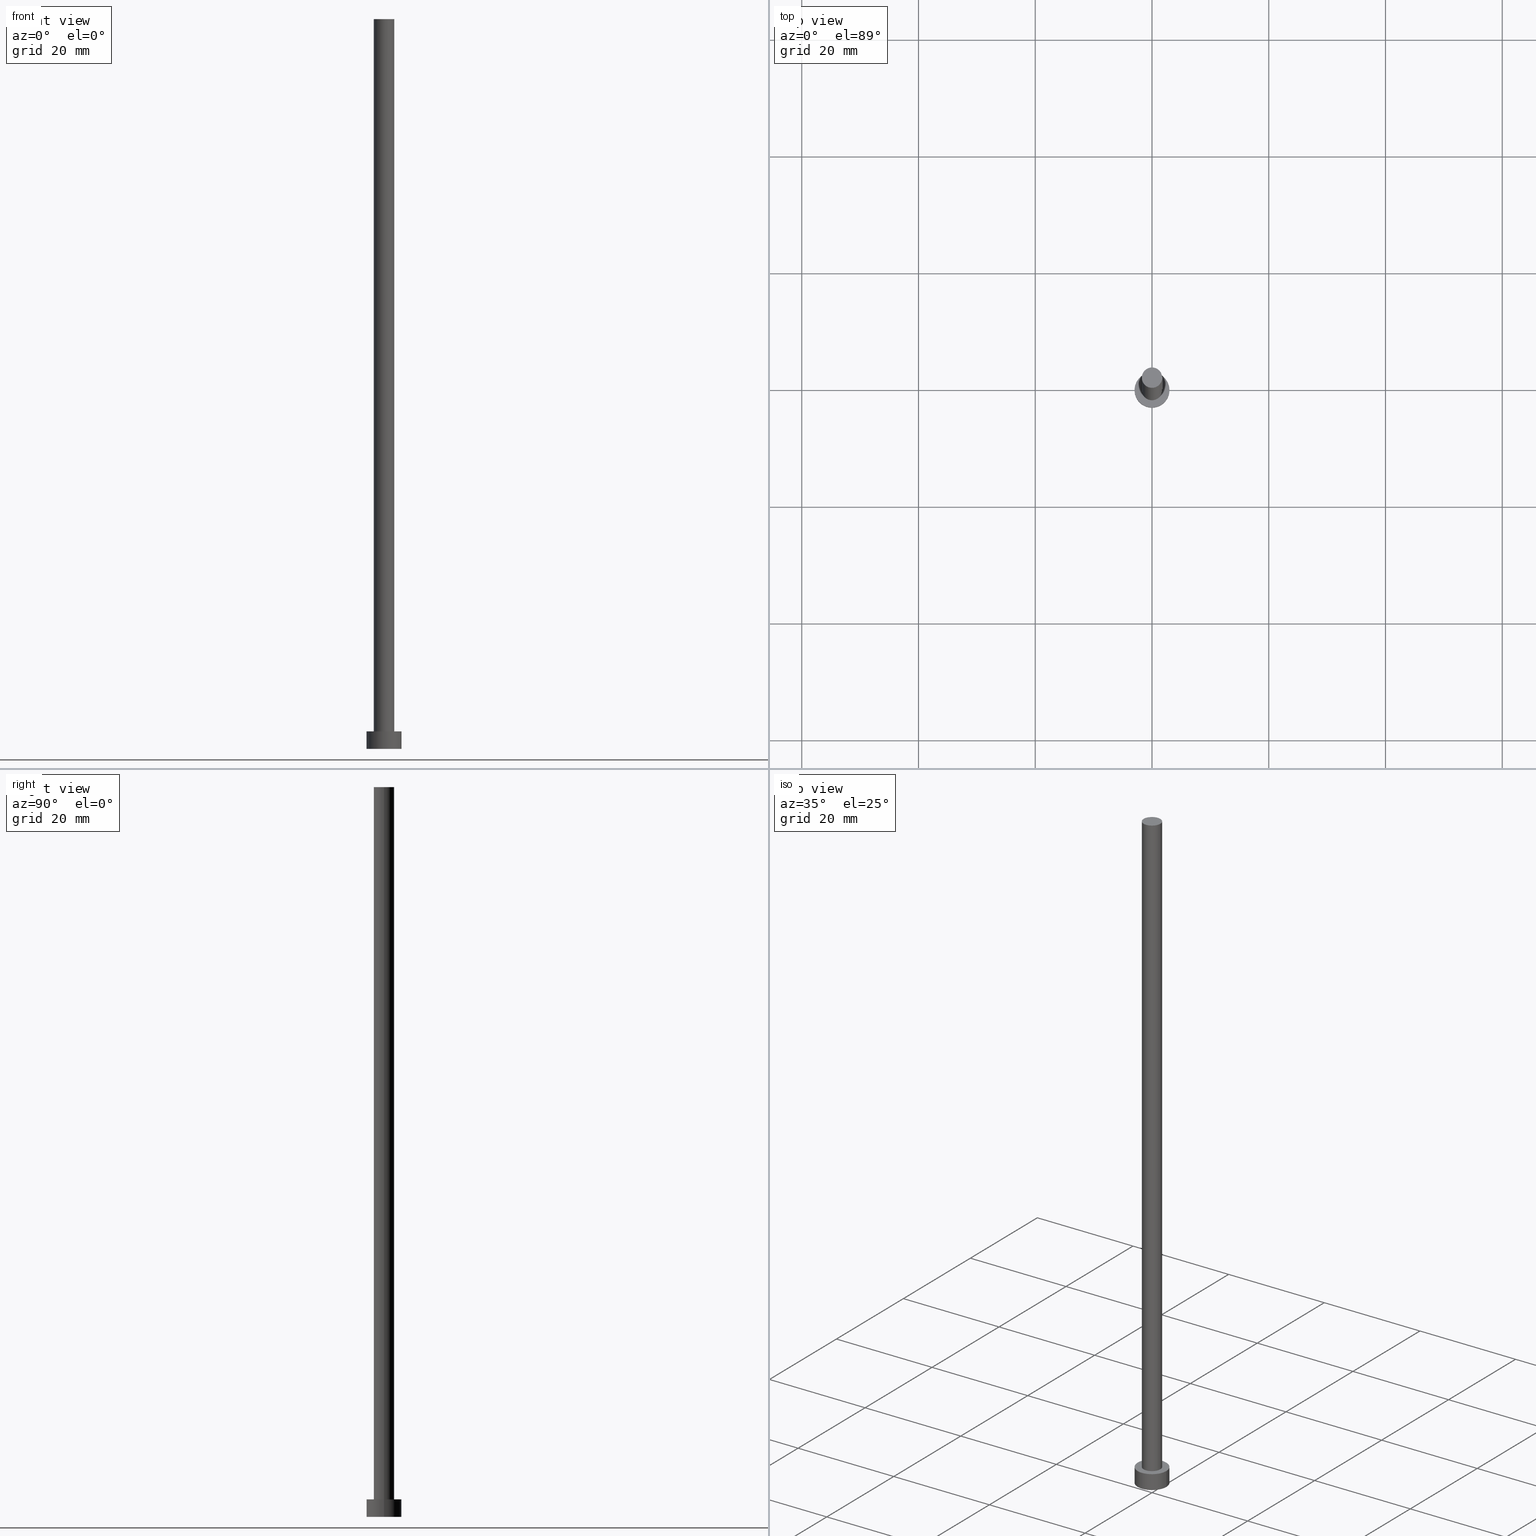
[diagram: canonical four-view strip — front | top / right | iso, engineering-drawing reading convention]
A machine part, canonical four-view strip (front | top / right | iso — engineering-drawing reading convention). The complete STEP part file that produces these views, byte-faithful:
ISO-10303-21;
HEADER;
FILE_DESCRIPTION (( 'STEP AP203' ),
    '1' );
FILE_NAME ('0328.STEP',
    '2023-02-13T16:51:21',
    ( '' ),
    ( '' ),
    'SwSTEP 2.0',
    'SolidWorks 2019',
    '' );
FILE_SCHEMA (( 'CONFIG_CONTROL_DESIGN' ));
ENDSEC;

DATA;
#1 = DIRECTION ( 'NONE',  ( 0.000000000000000000, 0.000000000000000000, 1.000000000000000000 ) ) ;
#2 = DIRECTION ( 'NONE',  ( -0.000000000000000000, -0.000000000000000000, -1.000000000000000000 ) ) ;
#3 = APPROVAL_ROLE ( '' ) ;
#4 = PERSON_AND_ORGANIZATION ( #148, #226 ) ;
#5 = CC_DESIGN_PERSON_AND_ORGANIZATION_ASSIGNMENT ( #4, #172, ( #72 ) ) ;
#6 = CARTESIAN_POINT ( 'NONE',  ( -1.750000000000000000, 0.000000000000000000, 125.0000000000000000 ) ) ;
#7 = DATE_AND_TIME ( #94, #151 ) ;
#8 = ORIENTED_EDGE ( 'NONE', *, *, #98, .T. ) ;
#9 = APPROVAL_PERSON_ORGANIZATION ( #122, #249, #3 ) ;
#10 = PERSON_AND_ORGANIZATION ( #148, #226 ) ;
#11 = PERSON_AND_ORGANIZATION ( #148, #226 ) ;
#12 = SECURITY_CLASSIFICATION ( '', '', #33 ) ;
#13 = APPROVAL_ROLE ( '' ) ;
#14 = EDGE_CURVE ( 'NONE', #155, #70, #77, .T. ) ;
#15 = ORIENTED_EDGE ( 'NONE', *, *, #20, .T. ) ;
#16 = DIRECTION ( 'NONE',  ( 0.000000000000000000, 0.000000000000000000, 1.000000000000000000 ) ) ;
#17 = FACE_OUTER_BOUND ( 'NONE', #138, .T. ) ;
#18 = DIRECTION ( 'NONE',  ( -0.000000000000000000, -0.000000000000000000, -1.000000000000000000 ) ) ;
#19 = LINE ( 'NONE', #198, #21 ) ;
#20 = EDGE_CURVE ( 'NONE', #179, #111, #51, .T. ) ;
#21 = VECTOR ( 'NONE', #18, 1000.000000000000000 ) ;
#22 = DIRECTION ( 'NONE',  ( 1.000000000000000000, 0.000000000000000000, -0.000000000000000000 ) ) ;
#23 = APPLICATION_PROTOCOL_DEFINITION ( 'international standard', 'config_control_design', 1994, #181 ) ;
#24 = APPROVAL ( #71, 'NEUR�EN�' ) ;
#25 = DIRECTION ( 'NONE',  ( 1.000000000000000000, 0.000000000000000000, 0.000000000000000000 ) ) ;
#26 = CIRCLE ( 'NONE', #78, 1.750000000000000000 ) ;
#27 = COORDINATED_UNIVERSAL_TIME_OFFSET ( 1, 0, .AHEAD. ) ;
#28 = DATE_TIME_ROLE ( 'classification_date' ) ;
#29 = EDGE_CURVE ( 'NONE', #228, #155, #26, .T. ) ;
#30 = APPROVAL_STATUS ( 'not_yet_approved' ) ;
#31 = UNCERTAINTY_MEASURE_WITH_UNIT (LENGTH_MEASURE( 1.000000000000000082E-05 ), #88, 'distance_accuracy_value', 'NONE');
#32 = CIRCLE ( 'NONE', #209, 3.000000000000000444 ) ;
#33 = SECURITY_CLASSIFICATION_LEVEL ( 'unclassified' ) ;
#34 = CC_DESIGN_DATE_AND_TIME_ASSIGNMENT ( #156, #193, ( #72 ) ) ;
#35 = CC_DESIGN_SECURITY_CLASSIFICATION ( #12, ( #150 ) ) ;
#36 = VERTEX_POINT ( 'NONE', #164 ) ;
#37 = AXIS2_PLACEMENT_3D ( 'NONE', #97, #119, #167 ) ;
#38 = CARTESIAN_POINT ( 'NONE',  ( 0.000000000000000000, 0.000000000000000000, 125.0000000000000000 ) ) ;
#39 = CARTESIAN_POINT ( 'NONE',  ( 0.000000000000000000, 0.000000000000000000, 3.000000000000000000 ) ) ;
#40 = ORIENTED_EDGE ( 'NONE', *, *, #135, .F. ) ;
#41 = CIRCLE ( 'NONE', #200, 1.750000000000000000 ) ;
#42 = AXIS2_PLACEMENT_3D ( 'NONE', #39, #141, #121 ) ;
#43 = CARTESIAN_POINT ( 'NONE',  ( 1.750000000000000000, 2.143131898507867804E-16, 125.0000000000000000 ) ) ;
#44 = ORIENTED_EDGE ( 'NONE', *, *, #98, .F. ) ;
#45 = APPLICATION_PROTOCOL_DEFINITION ( 'international standard', 'config_control_design', 1994, #87 ) ;
#46 = ADVANCED_FACE ( 'NONE', ( #216 ), #59, .T. ) ;
#47 = DIRECTION ( 'NONE',  ( 0.000000000000000000, 0.000000000000000000, 1.000000000000000000 ) ) ;
#48 = PRODUCT_DEFINITION_SHAPE ( 'NONE', 'NONE',  #72 ) ;
#49 = PERSON_AND_ORGANIZATION ( #148, #226 ) ;
#50 = AXIS2_PLACEMENT_3D ( 'NONE', #255, #16, #163 ) ;
#51 = CIRCLE ( 'NONE', #50, 3.000000000000000444 ) ;
#52 = EDGE_CURVE ( 'NONE', #70, #194, #41, .T. ) ;
#53 = EDGE_LOOP ( 'NONE', ( #229, #73, #131, #95 ) ) ;
#54 = EDGE_LOOP ( 'NONE', ( #113, #102 ) ) ;
#55 = COORDINATED_UNIVERSAL_TIME_OFFSET ( 1, 0, .AHEAD. ) ;
#56 = EDGE_CURVE ( 'NONE', #194, #70, #252, .T. ) ;
#57 = SHAPE_DEFINITION_REPRESENTATION ( #48, #134 ) ;
#58 = DIRECTION ( 'NONE',  ( -0.000000000000000000, -0.000000000000000000, -1.000000000000000000 ) ) ;
#59 = PLANE ( 'NONE',  #118 ) ;
#60 = ORIENTED_EDGE ( 'NONE', *, *, #52, .T. ) ;
#61 = APPROVAL_PERSON_ORGANIZATION ( #10, #24, #13 ) ;
#62 = CARTESIAN_POINT ( 'NONE',  ( 0.000000000000000000, 0.000000000000000000, 125.0000000000000000 ) ) ;
#63 = CARTESIAN_POINT ( 'NONE',  ( 0.000000000000000000, 0.000000000000000000, 3.000000000000000000 ) ) ;
#64 = CARTESIAN_POINT ( 'NONE',  ( 1.750000000000000000, 2.143131898507867804E-16, 125.0000000000000000 ) ) ;
#65 = CC_DESIGN_APPROVAL ( #85, ( #12 ) ) ;
#66 = DIRECTION ( 'NONE',  ( -0.000000000000000000, -0.000000000000000000, -1.000000000000000000 ) ) ;
#67 = DATE_AND_TIME ( #108, #214 ) ;
#68 = DIRECTION ( 'NONE',  ( 0.000000000000000000, 0.000000000000000000, 1.000000000000000000 ) ) ;
#69 = EDGE_LOOP ( 'NONE', ( #129, #133, #215, #250 ) ) ;
#70 = VERTEX_POINT ( 'NONE', #76 ) ;
#71 = APPROVAL_STATUS ( 'not_yet_approved' ) ;
#72 = PRODUCT_DEFINITION ( 'NEZN�M�', '', #150, #197 ) ;
#73 = ORIENTED_EDGE ( 'NONE', *, *, #139, .T. ) ;
#74 = CIRCLE ( 'NONE', #130, 3.000000000000000444 ) ;
#75 = PERSON_AND_ORGANIZATION ( #148, #226 ) ;
#76 = CARTESIAN_POINT ( 'NONE',  ( -1.750000000000000000, 0.000000000000000000, 3.000000000000000000 ) ) ;
#77 = LINE ( 'NONE', #184, #162 ) ;
#78 = AXIS2_PLACEMENT_3D ( 'NONE', #38, #180, #166 ) ;
#79 = CARTESIAN_POINT ( 'NONE',  ( -3.000000000000000444, 0.000000000000000000, 3.000000000000000000 ) ) ;
#80 = DIRECTION ( 'NONE',  ( -0.000000000000000000, -0.000000000000000000, -1.000000000000000000 ) ) ;
#81 = APPROVAL_PERSON_ORGANIZATION ( #75, #85, #177 ) ;
#82 = EDGE_CURVE ( 'NONE', #36, #212, #243, .T. ) ;
#83 = CARTESIAN_POINT ( 'NONE',  ( -3.000000000000000444, 0.000000000000000000, 3.000000000000000000 ) ) ;
#84 = CYLINDRICAL_SURFACE ( 'NONE', #218, 3.000000000000000444 ) ;
#85 = APPROVAL ( #30, 'NEUR�EN�' ) ;
#86 = CARTESIAN_POINT ( 'NONE',  ( 0.000000000000000000, 0.000000000000000000, 3.000000000000000000 ) ) ;
#87 = APPLICATION_CONTEXT ( 'configuration controlled 3d designs of mechanical parts and assemblies' ) ;
#88 =( LENGTH_UNIT ( ) NAMED_UNIT ( * ) SI_UNIT ( .MILLI., .METRE. ) );
#89 = PRODUCT ( '0328', '0328', '', ( #169 ) ) ;
#90 = DIRECTION ( 'NONE',  ( -1.000000000000000000, 0.000000000000000000, 0.000000000000000000 ) ) ;
#91 = PERSON_AND_ORGANIZATION_ROLE ( 'classification_officer' ) ;
#92 = EDGE_CURVE ( 'NONE', #111, #36, #161, .T. ) ;
#93 = PERSON_AND_ORGANIZATION ( #148, #226 ) ;
#94 = CALENDAR_DATE ( 2023, 13, 2 ) ;
#95 = ORIENTED_EDGE ( 'NONE', *, *, #92, .F. ) ;
#96 = DATE_AND_TIME ( #227, #191 ) ;
#97 = CARTESIAN_POINT ( 'NONE',  ( 0.000000000000000000, 0.000000000000000000, 0.000000000000000000 ) ) ;
#98 = EDGE_CURVE ( 'NONE', #155, #228, #236, .T. ) ;
#99 = DIRECTION ( 'NONE',  ( 1.000000000000000000, 0.000000000000000000, -0.000000000000000000 ) ) ;
#100 = CYLINDRICAL_SURFACE ( 'NONE', #231, 1.750000000000000000 ) ;
#101 = EDGE_CURVE ( 'NONE', #111, #179, #74, .T. ) ;
#102 = ORIENTED_EDGE ( 'NONE', *, *, #56, .F. ) ;
#103 = CARTESIAN_POINT ( 'NONE',  ( 0.000000000000000000, 0.000000000000000000, 0.000000000000000000 ) ) ;
#104 = FACE_BOUND ( 'NONE', #54, .T. ) ;
#105 = CC_DESIGN_PERSON_AND_ORGANIZATION_ASSIGNMENT ( #93, #91, ( #12 ) ) ;
#106 = CARTESIAN_POINT ( 'NONE',  ( 0.000000000000000000, 0.000000000000000000, 0.000000000000000000 ) ) ;
#107 = CYLINDRICAL_SURFACE ( 'NONE', #143, 1.750000000000000000 ) ;
#108 = CALENDAR_DATE ( 2023, 13, 2 ) ;
#109 = AXIS2_PLACEMENT_3D ( 'NONE', #86, #47, #22 ) ;
#110 = ADVANCED_FACE ( 'NONE', ( #17 ), #100, .T. ) ;
#111 = VERTEX_POINT ( 'NONE', #79 ) ;
#112 = APPROVAL_DATE_TIME ( #7, #85 ) ;
#113 = ORIENTED_EDGE ( 'NONE', *, *, #52, .F. ) ;
#114 = ADVANCED_FACE ( 'NONE', ( #235 ), #142, .T. ) ;
#115 = ORIENTED_EDGE ( 'NONE', *, *, #14, .T. ) ;
#116 = ORIENTED_EDGE ( 'NONE', *, *, #139, .F. ) ;
#117 = CC_DESIGN_PERSON_AND_ORGANIZATION_ASSIGNMENT ( #49, #239, ( #89 ) ) ;
#118 = AXIS2_PLACEMENT_3D ( 'NONE', #62, #251, #99 ) ;
#119 = DIRECTION ( 'NONE',  ( 0.000000000000000000, 0.000000000000000000, 1.000000000000000000 ) ) ;
#120 = DIRECTION ( 'NONE',  ( -0.000000000000000000, -0.000000000000000000, -1.000000000000000000 ) ) ;
#121 = DIRECTION ( 'NONE',  ( 1.000000000000000000, 0.000000000000000000, 0.000000000000000000 ) ) ;
#122 = PERSON_AND_ORGANIZATION ( #148, #226 ) ;
#123 = PLANE ( 'NONE',  #247 ) ;
#124 =( NAMED_UNIT ( * ) SI_UNIT ( $, .STERADIAN. ) SOLID_ANGLE_UNIT ( ) );
#125 = CARTESIAN_POINT ( 'NONE',  ( 0.000000000000000000, 0.000000000000000000, 0.000000000000000000 ) ) ;
#126 = AXIS2_PLACEMENT_3D ( 'NONE', #237, #185, #202 ) ;
#127 = CARTESIAN_POINT ( 'NONE',  ( 0.000000000000000000, 0.000000000000000000, 3.000000000000000000 ) ) ;
#128 = PERSON_AND_ORGANIZATION ( #148, #226 ) ;
#129 = ORIENTED_EDGE ( 'NONE', *, *, #29, .F. ) ;
#130 = AXIS2_PLACEMENT_3D ( 'NONE', #203, #199, #137 ) ;
#131 = ORIENTED_EDGE ( 'NONE', *, *, #154, .T. ) ;
#132 = APPROVAL_DATE_TIME ( #96, #24 ) ;
#133 = ORIENTED_EDGE ( 'NONE', *, *, #135, .T. ) ;
#134 = ADVANCED_BREP_SHAPE_REPRESENTATION ( '0328', ( #240, #206 ), #153 ) ;
#135 = EDGE_CURVE ( 'NONE', #228, #194, #219, .T. ) ;
#136 = EDGE_LOOP ( 'NONE', ( #116, #207, #196, #213 ) ) ;
#137 = DIRECTION ( 'NONE',  ( 1.000000000000000000, 0.000000000000000000, 0.000000000000000000 ) ) ;
#138 = EDGE_LOOP ( 'NONE', ( #40, #44, #115, #60 ) ) ;
#139 = EDGE_CURVE ( 'NONE', #179, #212, #19, .T. ) ;
#140 = CC_DESIGN_APPROVAL ( #24, ( #150 ) ) ;
#141 = DIRECTION ( 'NONE',  ( 0.000000000000000000, 0.000000000000000000, 1.000000000000000000 ) ) ;
#142 = CYLINDRICAL_SURFACE ( 'NONE', #188, 3.000000000000000444 ) ;
#143 = AXIS2_PLACEMENT_3D ( 'NONE', #149, #2, #90 ) ;
#144 = DIRECTION ( 'NONE',  ( -0.000000000000000000, -0.000000000000000000, -1.000000000000000000 ) ) ;
#145 = DIRECTION ( 'NONE',  ( 0.000000000000000000, 0.000000000000000000, 1.000000000000000000 ) ) ;
#146 =( NAMED_UNIT ( * ) PLANE_ANGLE_UNIT ( ) SI_UNIT ( $, .RADIAN. ) );
#147 = COORDINATED_UNIVERSAL_TIME_OFFSET ( 1, 0, .AHEAD. ) ;
#148 = PERSON ( 'NEUR�EN�', 'NEUR�EN�', 'NEUR�EN�', ('NEUR�EN�'), ('NEUR�EN�'), ('NEUR�EN�') ) ;
#149 = CARTESIAN_POINT ( 'NONE',  ( 0.000000000000000000, 0.000000000000000000, 125.0000000000000000 ) ) ;
#150 = PRODUCT_DEFINITION_FORMATION_WITH_SPECIFIED_SOURCE ( 'LIBOVOLN�', '', #89, .NOT_KNOWN. ) ;
#151 = LOCAL_TIME ( 17, 51, 21.00000000000000000, #210 ) ;
#152 = APPROVAL_STATUS ( 'not_yet_approved' ) ;
#153 =( GEOMETRIC_REPRESENTATION_CONTEXT ( 3 ) GLOBAL_UNCERTAINTY_ASSIGNED_CONTEXT ( ( #31 ) ) GLOBAL_UNIT_ASSIGNED_CONTEXT ( ( #88, #146, #124 ) ) REPRESENTATION_CONTEXT ( 'NONE', 'WORKASPACE' ) );
#154 = EDGE_CURVE ( 'NONE', #212, #36, #32, .T. ) ;
#155 = VERTEX_POINT ( 'NONE', #6 ) ;
#156 = DATE_AND_TIME ( #190, #254 ) ;
#157 = VECTOR ( 'NONE', #120, 1000.000000000000000 ) ;
#158 = ORIENTED_EDGE ( 'NONE', *, *, #101, .T. ) ;
#159 = CC_DESIGN_APPROVAL ( #249, ( #72 ) ) ;
#160 = CC_DESIGN_PERSON_AND_ORGANIZATION_ASSIGNMENT ( #128, #248, ( #150 ) ) ;
#161 = LINE ( 'NONE', #83, #187 ) ;
#162 = VECTOR ( 'NONE', #230, 1000.000000000000000 ) ;
#163 = DIRECTION ( 'NONE',  ( 1.000000000000000000, 0.000000000000000000, 0.000000000000000000 ) ) ;
#164 = CARTESIAN_POINT ( 'NONE',  ( -3.000000000000000444, 0.000000000000000000, 0.000000000000000000 ) ) ;
#165 = LOCAL_TIME ( 17, 51, 21.00000000000000000, #242 ) ;
#166 = DIRECTION ( 'NONE',  ( 1.000000000000000000, 0.000000000000000000, 0.000000000000000000 ) ) ;
#167 = DIRECTION ( 'NONE',  ( 1.000000000000000000, 0.000000000000000000, 0.000000000000000000 ) ) ;
#168 = CC_DESIGN_DATE_AND_TIME_ASSIGNMENT ( #175, #28, ( #12 ) ) ;
#169 = MECHANICAL_CONTEXT ( 'NONE', #181, 'mechanical' ) ;
#170 = CARTESIAN_POINT ( 'NONE',  ( 3.000000000000000444, 3.673940397442060361E-16, 3.000000000000000000 ) ) ;
#171 = FACE_OUTER_BOUND ( 'NONE', #136, .T. ) ;
#172 = PERSON_AND_ORGANIZATION_ROLE ( 'creator' ) ;
#173 = FACE_OUTER_BOUND ( 'NONE', #69, .T. ) ;
#174 = CLOSED_SHELL ( 'NONE', ( #208, #114, #195, #238, #204, #110, #46 ) ) ;
#175 = DATE_AND_TIME ( #244, #165 ) ;
#176 = ORIENTED_EDGE ( 'NONE', *, *, #82, .F. ) ;
#177 = APPROVAL_ROLE ( '' ) ;
#178 = PERSON_AND_ORGANIZATION_ROLE ( 'creator' ) ;
#179 = VERTEX_POINT ( 'NONE', #170 ) ;
#180 = DIRECTION ( 'NONE',  ( 0.000000000000000000, 0.000000000000000000, 1.000000000000000000 ) ) ;
#181 = APPLICATION_CONTEXT ( 'configuration controlled 3d designs of mechanical parts and assemblies' ) ;
#182 = DIRECTION ( 'NONE',  ( 0.000000000000000000, 0.000000000000000000, 1.000000000000000000 ) ) ;
#183 = DIRECTION ( 'NONE',  ( -1.000000000000000000, 0.000000000000000000, 0.000000000000000000 ) ) ;
#184 = CARTESIAN_POINT ( 'NONE',  ( -1.750000000000000000, 0.000000000000000000, 125.0000000000000000 ) ) ;
#185 = DIRECTION ( 'NONE',  ( 0.000000000000000000, 0.000000000000000000, 1.000000000000000000 ) ) ;
#186 = DIRECTION ( 'NONE',  ( 1.000000000000000000, 0.000000000000000000, -0.000000000000000000 ) ) ;
#187 = VECTOR ( 'NONE', #58, 1000.000000000000000 ) ;
#188 = AXIS2_PLACEMENT_3D ( 'NONE', #63, #144, #253 ) ;
#189 = CARTESIAN_POINT ( 'NONE',  ( 1.750000000000000000, 2.143131898507867804E-16, 3.000000000000000000 ) ) ;
#190 = CALENDAR_DATE ( 2023, 13, 2 ) ;
#191 = LOCAL_TIME ( 17, 51, 21.00000000000000000, #55 ) ;
#192 = EDGE_LOOP ( 'NONE', ( #176, #217 ) ) ;
#193 = DATE_TIME_ROLE ( 'creation_date' ) ;
#194 = VERTEX_POINT ( 'NONE', #189 ) ;
#195 = ADVANCED_FACE ( 'NONE', ( #171 ), #84, .T. ) ;
#196 = ORIENTED_EDGE ( 'NONE', *, *, #92, .T. ) ;
#197 = DESIGN_CONTEXT ( 'detailed design', #87, 'design' ) ;
#198 = CARTESIAN_POINT ( 'NONE',  ( 3.000000000000000444, 3.673940397442060361E-16, 3.000000000000000000 ) ) ;
#199 = DIRECTION ( 'NONE',  ( 0.000000000000000000, 0.000000000000000000, 1.000000000000000000 ) ) ;
#200 = AXIS2_PLACEMENT_3D ( 'NONE', #233, #182, #232 ) ;
#201 = CARTESIAN_POINT ( 'NONE',  ( 0.000000000000000000, 0.000000000000000000, 125.0000000000000000 ) ) ;
#202 = DIRECTION ( 'NONE',  ( 1.000000000000000000, 0.000000000000000000, 0.000000000000000000 ) ) ;
#203 = CARTESIAN_POINT ( 'NONE',  ( 0.000000000000000000, 0.000000000000000000, 3.000000000000000000 ) ) ;
#204 = ADVANCED_FACE ( 'NONE', ( #222 ), #123, .F. ) ;
#205 = APPROVAL_DATE_TIME ( #67, #249 ) ;
#206 = AXIS2_PLACEMENT_3D ( 'NONE', #106, #68, #25 ) ;
#207 = ORIENTED_EDGE ( 'NONE', *, *, #101, .F. ) ;
#208 = ADVANCED_FACE ( 'NONE', ( #173 ), #107, .T. ) ;
#209 = AXIS2_PLACEMENT_3D ( 'NONE', #103, #1, #220 ) ;
#210 = COORDINATED_UNIVERSAL_TIME_OFFSET ( 1, 0, .AHEAD. ) ;
#211 = EDGE_LOOP ( 'NONE', ( #158, #15 ) ) ;
#212 = VERTEX_POINT ( 'NONE', #241 ) ;
#213 = ORIENTED_EDGE ( 'NONE', *, *, #82, .T. ) ;
#214 = LOCAL_TIME ( 17, 51, 21.00000000000000000, #147 ) ;
#215 = ORIENTED_EDGE ( 'NONE', *, *, #56, .T. ) ;
#216 = FACE_OUTER_BOUND ( 'NONE', #246, .T. ) ;
#217 = ORIENTED_EDGE ( 'NONE', *, *, #154, .F. ) ;
#218 = AXIS2_PLACEMENT_3D ( 'NONE', #127, #66, #225 ) ;
#219 = LINE ( 'NONE', #43, #157 ) ;
#220 = DIRECTION ( 'NONE',  ( 1.000000000000000000, 0.000000000000000000, 0.000000000000000000 ) ) ;
#221 = FACE_OUTER_BOUND ( 'NONE', #211, .T. ) ;
#222 = FACE_OUTER_BOUND ( 'NONE', #192, .T. ) ;
#223 = PLANE ( 'NONE',  #109 ) ;
#224 = PRODUCT_RELATED_PRODUCT_CATEGORY ( 'detail', '', ( #89 ) ) ;
#225 = DIRECTION ( 'NONE',  ( -1.000000000000000000, 0.000000000000000000, 0.000000000000000000 ) ) ;
#226 = ORGANIZATION ( 'NEUR�EN�', 'NEUR�EN�', '' ) ;
#227 = CALENDAR_DATE ( 2023, 13, 2 ) ;
#228 = VERTEX_POINT ( 'NONE', #64 ) ;
#229 = ORIENTED_EDGE ( 'NONE', *, *, #20, .F. ) ;
#230 = DIRECTION ( 'NONE',  ( -0.000000000000000000, -0.000000000000000000, -1.000000000000000000 ) ) ;
#231 = AXIS2_PLACEMENT_3D ( 'NONE', #201, #80, #183 ) ;
#232 = DIRECTION ( 'NONE',  ( 1.000000000000000000, 0.000000000000000000, 0.000000000000000000 ) ) ;
#233 = CARTESIAN_POINT ( 'NONE',  ( 0.000000000000000000, 0.000000000000000000, 3.000000000000000000 ) ) ;
#234 = CC_DESIGN_PERSON_AND_ORGANIZATION_ASSIGNMENT ( #11, #178, ( #150 ) ) ;
#235 = FACE_OUTER_BOUND ( 'NONE', #53, .T. ) ;
#236 = CIRCLE ( 'NONE', #126, 1.750000000000000000 ) ;
#237 = CARTESIAN_POINT ( 'NONE',  ( 0.000000000000000000, 0.000000000000000000, 125.0000000000000000 ) ) ;
#238 = ADVANCED_FACE ( 'NONE', ( #104, #221 ), #223, .T. ) ;
#239 = PERSON_AND_ORGANIZATION_ROLE ( 'design_owner' ) ;
#240 = MANIFOLD_SOLID_BREP ( 'P�idat vysunut�m3', #174 ) ;
#241 = CARTESIAN_POINT ( 'NONE',  ( 3.000000000000000444, 3.673940397442060361E-16, 0.000000000000000000 ) ) ;
#242 = COORDINATED_UNIVERSAL_TIME_OFFSET ( 1, 0, .AHEAD. ) ;
#243 = CIRCLE ( 'NONE', #37, 3.000000000000000444 ) ;
#244 = CALENDAR_DATE ( 2023, 13, 2 ) ;
#245 = ORIENTED_EDGE ( 'NONE', *, *, #29, .T. ) ;
#246 = EDGE_LOOP ( 'NONE', ( #8, #245 ) ) ;
#247 = AXIS2_PLACEMENT_3D ( 'NONE', #125, #145, #186 ) ;
#248 = PERSON_AND_ORGANIZATION_ROLE ( 'design_supplier' ) ;
#249 = APPROVAL ( #152, 'NEUR�EN�' ) ;
#250 = ORIENTED_EDGE ( 'NONE', *, *, #14, .F. ) ;
#251 = DIRECTION ( 'NONE',  ( 0.000000000000000000, 0.000000000000000000, 1.000000000000000000 ) ) ;
#252 = CIRCLE ( 'NONE', #42, 1.750000000000000000 ) ;
#253 = DIRECTION ( 'NONE',  ( -1.000000000000000000, 0.000000000000000000, 0.000000000000000000 ) ) ;
#254 = LOCAL_TIME ( 17, 51, 21.00000000000000000, #27 ) ;
#255 = CARTESIAN_POINT ( 'NONE',  ( 0.000000000000000000, 0.000000000000000000, 3.000000000000000000 ) ) ;
ENDSEC;
END-ISO-10303-21;
